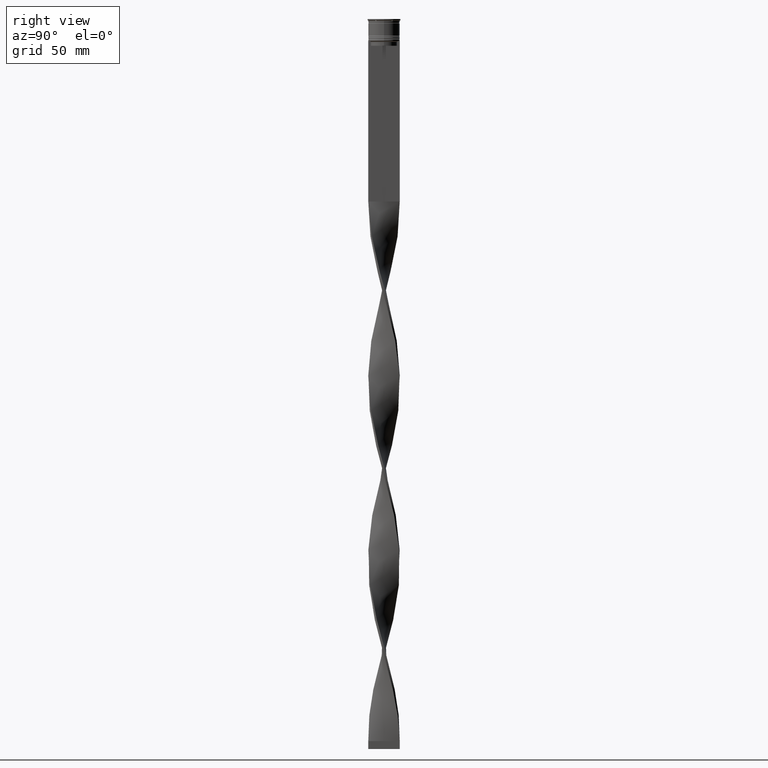
[diagram: clean part render]
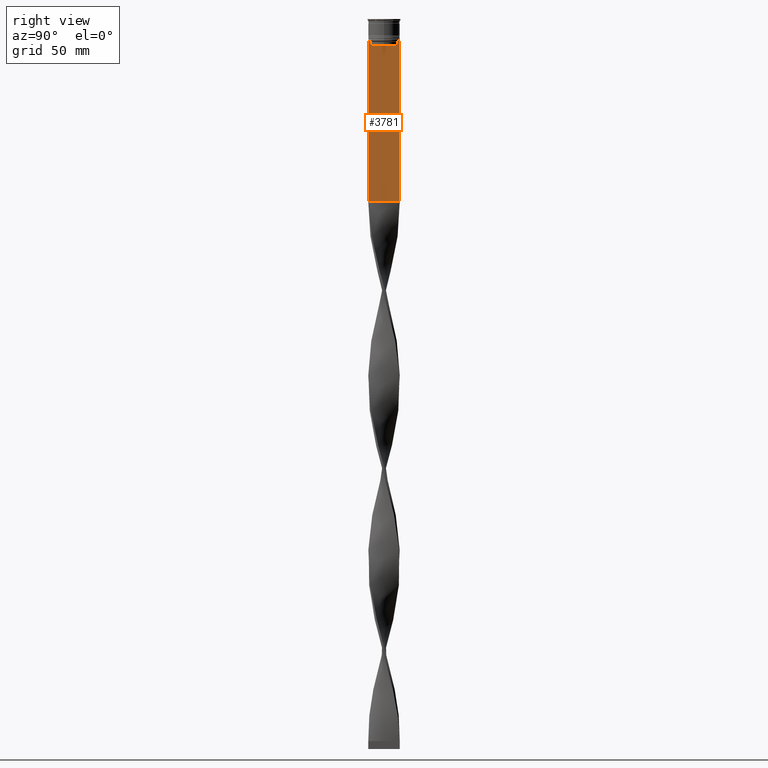
[diagram: same view with one face highlighted and labeled with its STEP entity id]
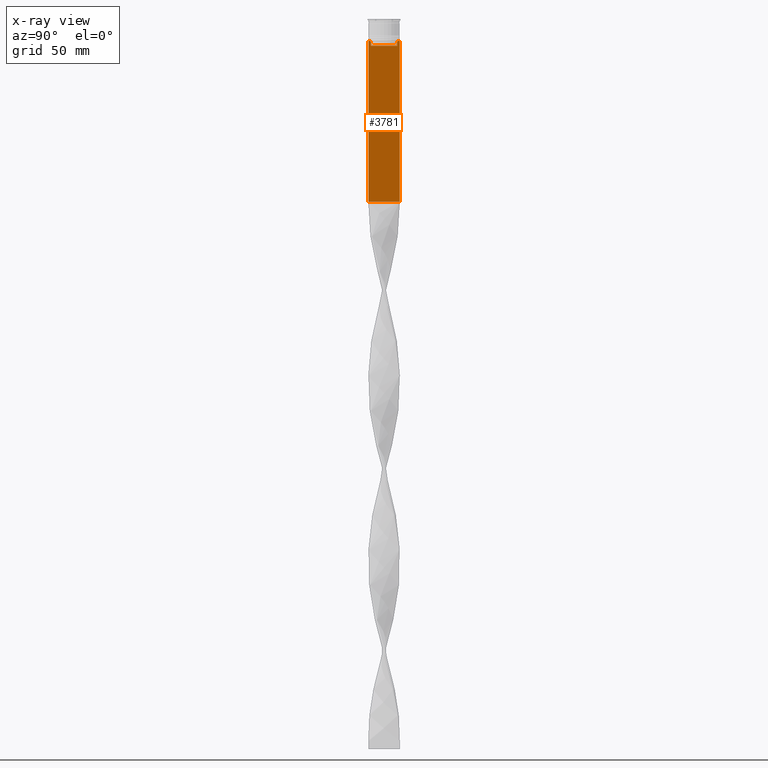
[diagram: x-ray of the same camera — body ghosted, the highlighted face saturated]
A machine part, right view. The second image highlights one B-rep face of the part: STEP entity #3781.
The next image is the same camera in x-ray: the body ghosted, the highlighted face saturated — about 0% of this face is hidden behind the body in this view.
In plain terms, the highlighted planar face has unit normal (-1, 0, 0).
Its self-contained STEP definition (entity closure, byte-faithful):
#47 = LINE ( 'NONE', #1803, #481 ) ;
#68 = DIRECTION ( 'NONE',  ( 0.000000000000000000, -1.000000000000000000, 0.000000000000000000 ) ) ;
#111 = ORIENTED_EDGE ( 'NONE', *, *, #1354, .T. ) ;
#162 = CARTESIAN_POINT ( 'NONE',  ( 0.7500000000000001110, -10.00000000000000533, -116.0000000000000000 ) ) ;
#253 = CARTESIAN_POINT ( 'NONE',  ( 0.7500000000000001110, 8.366450860430608927, -14.50000000000000000 ) ) ;
#264 = DIRECTION ( 'NONE',  ( 0.000000000000000000, 0.000000000000000000, -1.000000000000000000 ) ) ;
#270 = EDGE_CURVE ( 'NONE', #3611, #2323, #3624, .T. ) ;
#347 = VECTOR ( 'NONE', #2764, 1000.000000000000000 ) ;
#351 = DIRECTION ( 'NONE',  ( 0.000000000000000000, -1.000000000000000000, 0.000000000000000000 ) ) ;
#376 = B_SPLINE_CURVE_WITH_KNOTS ( 'NONE', 3,
 ( #2361, #588, #1344, #3740 ),
 .UNSPECIFIED., .F., .F.,
 ( 4, 4 ),
 ( 0.01512225952876174867, 0.01583070519299695222 ),
 .UNSPECIFIED. ) ;
#396 = VECTOR ( 'NONE', #3698, 1000.000000000000000 ) ;
#435 = ORIENTED_EDGE ( 'NONE', *, *, #3616, .T. ) ;
#480 = CARTESIAN_POINT ( 'NONE',  ( 0.7500000000000001110, -8.366450860430608927, -17.00000000000000000 ) ) ;
#481 = VECTOR ( 'NONE', #68, 1000.000000000000000 ) ;
#542 = VERTEX_POINT ( 'NONE', #480 ) ;
#588 = CARTESIAN_POINT ( 'NONE',  ( 0.7500000000000001110, 8.701063075415250481, -14.16668448247791545 ) ) ;
#654 = CARTESIAN_POINT ( 'NONE',  ( 0.7500000000000001110, -10.00000000000000533, 6.056171120131581098 ) ) ;
#666 = ORIENTED_EDGE ( 'NONE', *, *, #857, .T. ) ;
#680 = VECTOR ( 'NONE', #351, 1000.000000000000000 ) ;
#689 = LINE ( 'NONE', #3426, #680 ) ;
#769 = VECTOR ( 'NONE', #1497, 1000.000000000000000 ) ;
#812 = VERTEX_POINT ( 'NONE', #3049 ) ;
#857 = EDGE_CURVE ( 'NONE', #542, #2007, #4087, .T. ) ;
#903 = ORIENTED_EDGE ( 'NONE', *, *, #959, .T. ) ;
#959 = EDGE_CURVE ( 'NONE', #1214, #1801, #689, .T. ) ;
#1026 = DIRECTION ( 'NONE',  ( -1.000000000000000000, 0.000000000000000000, 0.000000000000000000 ) ) ;
#1213 = ORIENTED_EDGE ( 'NONE', *, *, #3301, .F. ) ;
#1214 = VERTEX_POINT ( 'NONE', #3134 ) ;
#1344 = CARTESIAN_POINT ( 'NONE',  ( 0.7500000000000001110, 8.533766897779925031, -14.33335221373273605 ) ) ;
#1354 = EDGE_CURVE ( 'NONE', #2205, #1776, #1636, .T. ) ;
#1383 = PLANE ( 'NONE',  #2712 ) ;
#1392 = CARTESIAN_POINT ( 'NONE',  ( 0.7500000000000001110, 8.868342573446296839, -14.00000000000000178 ) ) ;
#1405 = CARTESIAN_POINT ( 'NONE',  ( 0.7500000000000001110, -8.701063080777121428, -14.16668447713511725 ) ) ;
#1474 = CARTESIAN_POINT ( 'NONE',  ( 0.7500000000000001110, 8.366450860430608927, 0.000000000000000000 ) ) ;
#1489 = VERTEX_POINT ( 'NONE', #3151 ) ;
#1497 = DIRECTION ( 'NONE',  ( 0.000000000000000000, -1.000000000000000000, 0.000000000000000000 ) ) ;
#1520 = DIRECTION ( 'NONE',  ( 0.000000000000000000, 0.000000000000000000, -1.000000000000000000 ) ) ;
#1559 = CARTESIAN_POINT ( 'NONE',  ( 0.7500000000000001110, -10.00000000000000533, -14.00000000000000178 ) ) ;
#1572 = LINE ( 'NONE', #3271, #2990 ) ;
#1607 = LINE ( 'NONE', #162, #3901 ) ;
#1636 = LINE ( 'NONE', #654, #3417 ) ;
#1642 = CARTESIAN_POINT ( 'NONE',  ( 0.7500000000000001110, 9.871550030263739117, -14.00000000000000178 ) ) ;
#1649 = VERTEX_POINT ( 'NONE', #3858 ) ;
#1737 = EDGE_CURVE ( 'NONE', #1649, #542, #2603, .T. ) ;
#1776 = VERTEX_POINT ( 'NONE', #4368 ) ;
#1801 = VERTEX_POINT ( 'NONE', #2939 ) ;
#1803 = CARTESIAN_POINT ( 'NONE',  ( 0.7500000000000001110, -10.00000000000000533, -14.00000000000000178 ) ) ;
#1871 = EDGE_CURVE ( 'NONE', #2007, #1214, #2739, .T. ) ;
#1897 = CARTESIAN_POINT ( 'NONE',  ( 0.7500000000000001110, -8.366450860430608927, -14.50000000000000000 ) ) ;
#1974 = CARTESIAN_POINT ( 'NONE',  ( 0.7500000000000001110, 8.400000000000003908, -17.00000000000000000 ) ) ;
#2007 = VERTEX_POINT ( 'NONE', #1897 ) ;
#2090 = EDGE_CURVE ( 'NONE', #1776, #812, #1607, .T. ) ;
#2103 = CARTESIAN_POINT ( 'NONE',  ( 0.7500000000000001110, -8.533766903463440912, -14.33335220807192023 ) ) ;
#2159 = EDGE_CURVE ( 'NONE', #1801, #2205, #4328, .T. ) ;
#2205 = VERTEX_POINT ( 'NONE', #3972 ) ;
#2242 = CARTESIAN_POINT ( 'NONE',  ( 0.7500000000000001110, -10.00000000000000533, -14.00000000000000178 ) ) ;
#2285 = DIRECTION ( 'NONE',  ( 0.000000000000000000, 1.000000000000000000, 0.000000000000000000 ) ) ;
#2323 = VERTEX_POINT ( 'NONE', #1392 ) ;
#2361 = CARTESIAN_POINT ( 'NONE',  ( 0.7500000000000001110, 8.868342573446296839, -14.00000000000000178 ) ) ;
#2385 = CARTESIAN_POINT ( 'NONE',  ( 0.7500000000000001110, -8.868342573446296839, -14.00000000000000178 ) ) ;
#2424 = CARTESIAN_POINT ( 'NONE',  ( 0.7500000000000001110, -8.366450860430608927, -14.50000000000000000 ) ) ;
#2459 = CARTESIAN_POINT ( 'NONE',  ( 0.7500000000000001110, -10.00000000000000533, 6.056171120131581098 ) ) ;
#2552 = VECTOR ( 'NONE', #3336, 1000.000000000000000 ) ;
#2603 = LINE ( 'NONE', #1974, #396 ) ;
#2712 = AXIS2_PLACEMENT_3D ( 'NONE', #2459, #1026, #3154 ) ;
#2721 = EDGE_CURVE ( 'NONE', #2928, #1649, #4211, .T. ) ;
#2739 = B_SPLINE_CURVE_WITH_KNOTS ( 'NONE', 3,
 ( #2424, #2103, #1405, #2385 ),
 .UNSPECIFIED., .F., .F.,
 ( 4, 4 ),
 ( 0.03866293624047253963, 0.03937282246709320616 ),
 .UNSPECIFIED. ) ;
#2741 = ORIENTED_EDGE ( 'NONE', *, *, #1737, .T. ) ;
#2764 = DIRECTION ( 'NONE',  ( -0.000000000000000000, -0.000000000000000000, 1.000000000000000000 ) ) ;
#2889 = ORIENTED_EDGE ( 'NONE', *, *, #270, .T. ) ;
#2914 = DIRECTION ( 'NONE',  ( 0.000000000000000000, 0.000000000000000000, -1.000000000000000000 ) ) ;
#2928 = VERTEX_POINT ( 'NONE', #253 ) ;
#2939 = CARTESIAN_POINT ( 'NONE',  ( 0.7500000000000001110, -9.871550030263739117, -14.00000000000000178 ) ) ;
#2962 = ORIENTED_EDGE ( 'NONE', *, *, #3794, .T. ) ;
#2990 = VECTOR ( 'NONE', #1520, 1000.000000000000000 ) ;
#3049 = CARTESIAN_POINT ( 'NONE',  ( 0.7500000000000002220, 9.999999999999998224, -116.0000000000000000 ) ) ;
#3134 = CARTESIAN_POINT ( 'NONE',  ( 0.7500000000000001110, -8.868342573446296839, -14.00000000000000178 ) ) ;
#3147 = ORIENTED_EDGE ( 'NONE', *, *, #2090, .T. ) ;
#3151 = CARTESIAN_POINT ( 'NONE',  ( 0.7500000000000001110, 9.999999999999998224, -14.00000000000000178 ) ) ;
#3154 = DIRECTION ( 'NONE',  ( 0.000000000000000000, 0.000000000000000000, 1.000000000000000000 ) ) ;
#3207 = ORIENTED_EDGE ( 'NONE', *, *, #1871, .T. ) ;
#3271 = CARTESIAN_POINT ( 'NONE',  ( 0.7500000000000001110, 9.999999999999998224, 6.056171120131581098 ) ) ;
#3301 = EDGE_CURVE ( 'NONE', #1489, #812, #1572, .T. ) ;
#3336 = DIRECTION ( 'NONE',  ( 0.000000000000000000, -1.000000000000000000, 0.000000000000000000 ) ) ;
#3417 = VECTOR ( 'NONE', #264, 1000.000000000000000 ) ;
#3426 = CARTESIAN_POINT ( 'NONE',  ( 0.7500000000000001110, -10.00000000000000533, -14.00000000000000178 ) ) ;
#3500 = EDGE_LOOP ( 'NONE', ( #2889, #435, #3544, #2741, #666, #3207, #903, #4254, #111, #3147, #1213, #2962 ) ) ;
#3544 = ORIENTED_EDGE ( 'NONE', *, *, #2721, .T. ) ;
#3611 = VERTEX_POINT ( 'NONE', #1642 ) ;
#3616 = EDGE_CURVE ( 'NONE', #2323, #2928, #376, .T. ) ;
#3624 = LINE ( 'NONE', #2242, #769 ) ;
#3698 = DIRECTION ( 'NONE',  ( 0.000000000000000000, -1.000000000000000000, 0.000000000000000000 ) ) ;
#3740 = CARTESIAN_POINT ( 'NONE',  ( 0.7500000000000001110, 8.366450860430608927, -14.50000000000000000 ) ) ;
#3757 = FACE_OUTER_BOUND ( 'NONE', #3500, .T. ) ;
#3781 = ADVANCED_FACE ( 'NONE', ( #3757 ), #1383, .F. ) ;
#3794 = EDGE_CURVE ( 'NONE', #1489, #3611, #47, .T. ) ;
#3858 = CARTESIAN_POINT ( 'NONE',  ( 0.7500000000000001110, 8.366450860430608927, -17.00000000000000000 ) ) ;
#3901 = VECTOR ( 'NONE', #2285, 1000.000000000000000 ) ;
#3972 = CARTESIAN_POINT ( 'NONE',  ( 0.7500000000000001110, -10.00000000000000533, -14.00000000000000178 ) ) ;
#3987 = VECTOR ( 'NONE', #2914, 1000.000000000000000 ) ;
#4087 = LINE ( 'NONE', #4147, #347 ) ;
#4147 = CARTESIAN_POINT ( 'NONE',  ( 0.7500000000000001110, -8.366450860430608927, 0.000000000000000000 ) ) ;
#4211 = LINE ( 'NONE', #1474, #3987 ) ;
#4254 = ORIENTED_EDGE ( 'NONE', *, *, #2159, .T. ) ;
#4328 = LINE ( 'NONE', #1559, #2552 ) ;
#4368 = CARTESIAN_POINT ( 'NONE',  ( 0.7500000000000001110, -10.00000000000000533, -116.0000000000000000 ) ) ;